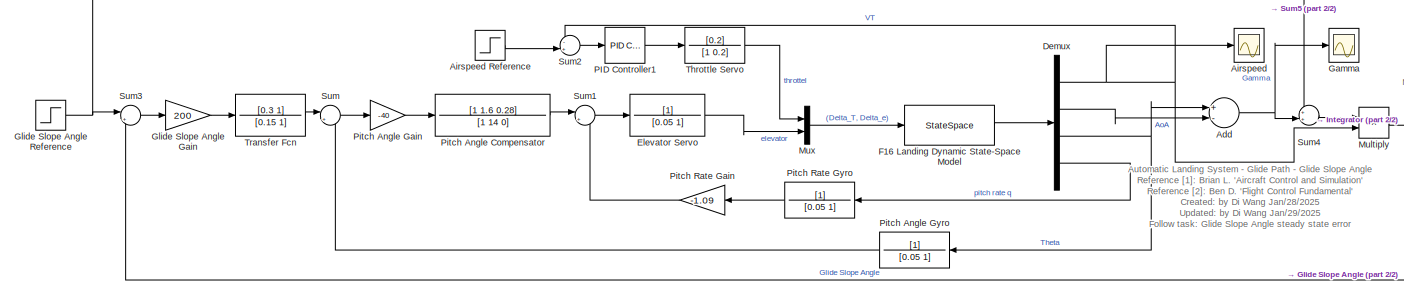
[diagram: root canvas - part 1/2, most of the canvas]
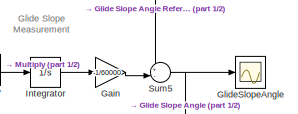
[diagram: root canvas - part 2/2, middle right region]
MODEL slx_0189c616c1a8
KIND model
CONFIG AbsTol = auto
CONFIG EnableMultiTasking = off
CONFIG FixedStep = auto
CONFIG MaxStep = auto
CONFIG MinStep = auto
CONFIG RelTol = 1e-3
CONFIG SampleTimeConstraint = Unconstrained
CONFIG Solver = VariableStepAuto
CONFIG SolverName = VariableStepAuto
CONFIG StartTime = 0.0
CONFIG StopTime = 30
BLOCK [Sum] Add
  InputSameDT = off
  Inputs = +-
  OutDataTypeStr = Inherit: Inherit via internal rule
  Ports = [2, 1]
  SaturateOnIntegerOverflow = off
BLOCK [Scope] Airspeed
  Floating = off
  NumInputPorts = 1
  Ports = [1]
  ScopeSpecificationString = Simulink.scopes.TimeScopeBlockCfg('CurrentConfiguration', extmgr.ConfigurationSet(extmgr.Configuration('Core','General UI',true),extmgr.Configuration('Core','Source UI',true),extmgr.Configuration('Sources','WiredSimulink',true,'DataLoggingVariableName','ScopeData1'),extmgr.Configuration('Visuals','Time Domain',true,'SerializedDisplays',{struct('MinYLimReal','-35.4219','MaxYLimReal','318.79706','YL...<+1367ch>
BLOCK [Step] Airspeed Reference
  After = 250
  SampleTime = 0
BLOCK [Demux] Demux
  DisplayOption = bar
  Ports = [1, 4]
BLOCK [TransferFcn] Elevator Servo
  Denominator = [0.05 1]
BLOCK [StateSpace] F16 Landing Dynamic State-Space Model
  A = [-0.03858 18.984 -32.139 0;\n     -0.001028 -0.63253 0.0056129 1;\n     0 0 0 1;\n     7.8601e-5 -0.75905 -0.00079341 -0.5183]
  B = [10.1 0; -1.5446e-4 0; 0 0; 0.024656 -0.01077]
  C = [1 0 0 0; 0 57.296 0 0; 0 0 57.296 0; 0 0 0 57.296]
  D = zeros(4,2)
  InitialCondition = 0
  Ports = [1, 1]
BLOCK [Gain] Gain
  Gain = -1/60000
  OutDataTypeStr = Inherit: Inherit via internal rule
  ParamDataTypeStr = Inherit: Inherit via internal rule
  SaturateOnIntegerOverflow = off
BLOCK [Scope] Gamma
  Floating = off
  NumInputPorts = 1
  Ports = [1]
  ScopeSpecificationString = Simulink.scopes.TimeScopeBlockCfg('CurrentConfiguration', extmgr.ConfigurationSet(extmgr.Configuration('Core','General UI',true),extmgr.Configuration('Core','Source UI',true),extmgr.Configuration('Sources','WiredSimulink',true,'DataLoggingVariableName','ScopeData1'),extmgr.Configuration('Visuals','Time Domain',true,'SerializedDisplays',{struct('MinYLimReal','-15.4888','MaxYLimReal','19.11064','YLa...<+1366ch>
BLOCK [Gain] Glide Slope Angle Gain
  Gain = 200
  OutDataTypeStr = Inherit: Inherit via internal rule
  ParamDataTypeStr = Inherit: Inherit via internal rule
  SaturateOnIntegerOverflow = off
BLOCK [Step] Glide Slope Angle Reference
  After = 3
  SampleTime = 0
BLOCK [Scope] GlideSlopeAngle
  Floating = off
  NumInputPorts = 1
  Ports = [1]
  ScopeSpecificationString = Simulink.scopes.TimeScopeBlockCfg('CurrentConfiguration', extmgr.ConfigurationSet(extmgr.Configuration('Core','General UI',true),extmgr.Configuration('Core','Source UI',true),extmgr.Configuration('Sources','WiredSimulink',true),extmgr.Configuration('Visuals','Time Domain',true,'SerializedDisplays',{struct('MinYLimReal','-0.40447','MaxYLimReal','3.64019','YLabelReal','','MinYLimMag','0.00000','MaxY...<+1335ch>
BLOCK [Integrator] Integrator
  Ports = [1, 1]
BLOCK [Product] Multiply
  InputSameDT = off
  OutDataTypeStr = Inherit: Inherit via internal rule
  Ports = [2, 1]
  RndMeth = Floor
  SaturateOnIntegerOverflow = off
BLOCK [Mux] Mux
  DisplayOption = bar
  Inputs = 2
  Ports = [2, 1]
BLOCK [Reference] PID Controller1  REF=simulink/Continuous/PID Controller
  Ports = [1, 1]
  SourceBlock = simulink/Continuous/PID Controller
  SourceProductBaseCode = SL
  SourceProductName = Simulink
  SourceType = PID 1dof
BLOCK [TransferFcn] Pitch Angle Compensator
  Denominator = [1 14 0]
  Numerator = [1 1.6 0.28]
BLOCK [Gain] Pitch Angle Gain
  Gain = -40
  OutDataTypeStr = Inherit: Inherit via internal rule
  ParamDataTypeStr = Inherit: Inherit via internal rule
  SaturateOnIntegerOverflow = off
BLOCK [TransferFcn] Pitch Angle Gyro
  Denominator = [0.05 1]
BLOCK [Gain] Pitch Rate Gain
  Gain = -1.09
  OutDataTypeStr = Inherit: Inherit via internal rule
  ParamDataTypeStr = Inherit: Inherit via internal rule
  SaturateOnIntegerOverflow = off
BLOCK [TransferFcn] Pitch Rate Gyro
  Denominator = [0.05 1]
BLOCK [Sum] Sum
  IconShape = round
  InputSameDT = off
  Inputs = |+-
  OutDataTypeStr = Inherit: Inherit via internal rule
  Ports = [2, 1]
  SaturateOnIntegerOverflow = off
BLOCK [Sum] Sum1
  IconShape = round
  InputSameDT = off
  Inputs = |+-
  OutDataTypeStr = Inherit: Inherit via internal rule
  Ports = [2, 1]
  SaturateOnIntegerOverflow = off
BLOCK [Sum] Sum2
  IconShape = round
  InputSameDT = off
  Inputs = -+|
  OutDataTypeStr = Inherit: Inherit via internal rule
  Ports = [2, 1]
  SaturateOnIntegerOverflow = off
BLOCK [Sum] Sum3
  IconShape = round
  InputSameDT = off
  Inputs = |+-
  OutDataTypeStr = Inherit: Inherit via internal rule
  Ports = [2, 1]
  SaturateOnIntegerOverflow = off
BLOCK [Sum] Sum4
  IconShape = round
  InputSameDT = off
  Inputs = ++|
  OutDataTypeStr = Inherit: Inherit via internal rule
  Ports = [2, 1]
  SaturateOnIntegerOverflow = off
BLOCK [Sum] Sum5
  IconShape = round
  InputSameDT = off
  Inputs = +-|
  OutDataTypeStr = Inherit: Inherit via internal rule
  Ports = [2, 1]
  SaturateOnIntegerOverflow = off
BLOCK [TransferFcn] Throttle Servo
  Denominator = [1 0.2]
  Numerator = [0.2]
BLOCK [TransferFcn] Transfer Fcn
  Denominator = [0.15 1]
  Numerator = [0.3 1]
ANNOTATION (root): Automatic Landing System - Glide Path - Glide Slope Angle Reference [1]: Brian L. 'Aircraft Control and Simulation' Reference [2]: Ben D. 'Flight Control Fundamental' Created: by Di Wang Jan/28/2025 Updated: by Di Wang Jan/29/2025 Follow task: Glide Slope Angle steady state error Inner loop compensator tuning
ANNOTATION (root): Glide Slope Measurement
NET Add:1 -> Gamma:1, Sum4:2
LINE Airspeed Reference:1 -> Sum2:2
NET Demux:1 -> Airspeed:1, Multiply:2, Sum2:1
LINE Demux:2 -> Add:2
NET Demux:3 -> Add:1, Pitch Angle Gyro:1
LINE Demux:4 -> Pitch Rate Gyro:1
LINE Elevator Servo:1 -> Mux:2
LINE F16 Landing Dynamic State-Space Model:1 -> Demux:1
LINE Gain:1 -> Sum5:2
LINE Glide Slope Angle Gain:1 -> Transfer Fcn:1
NET Glide Slope Angle Reference:1 -> Sum3:1, Sum4:1, Sum5:1
LINE Integrator:1 -> Gain:1
LINE Multiply:1 -> Integrator:1
LINE Mux:1 -> F16 Landing Dynamic State-Space Model:1
LINE PID Controller1:1 -> Throttle Servo:1
LINE Pitch Angle Compensator:1 -> Sum1:1
LINE Pitch Angle Gain:1 -> Pitch Angle Compensator:1
LINE Pitch Angle Gyro:1 -> Sum:2
LINE Pitch Rate Gain:1 -> Sum1:2
LINE Pitch Rate Gyro:1 -> Pitch Rate Gain:1
LINE Sum1:1 -> Elevator Servo:1
LINE Sum2:1 -> PID Controller1:1
LINE Sum3:1 -> Glide Slope Angle Gain:1
LINE Sum4:1 -> Multiply:1
NET Sum5:1 -> GlideSlopeAngle:1, Sum3:2
LINE Sum:1 -> Pitch Angle Gain:1
LINE Throttle Servo:1 -> Mux:1
LINE Transfer Fcn:1 -> Sum:1
note: NET lines group one-source signal fan-out (src -> all destinations, sorted); 1:1 wires keep LINE
